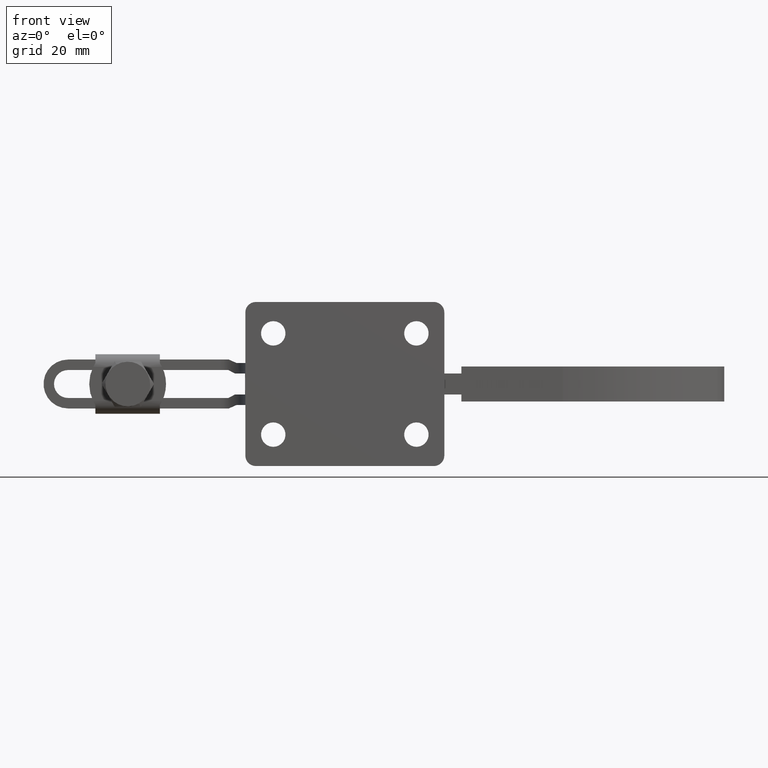
[diagram: clean part render]
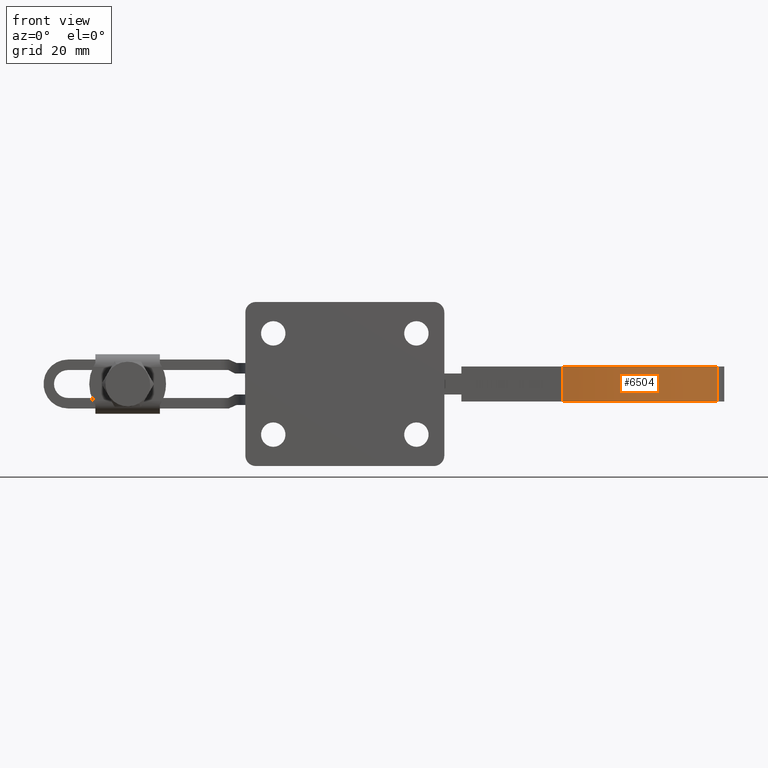
[diagram: same view with one face highlighted and labeled with its STEP entity id]
A machine part, front view. The second image highlights one B-rep face of the part: STEP entity #6504.
In plain terms, the highlighted cylindrical surface (partial cylindrical patch) has radius 61.8 mm, axis along (-0, 0, 1).
Its self-contained STEP definition (entity closure, byte-faithful):
#57 = DIRECTION ( 'NONE',  ( 0.9988003929835591600, -0.04896708053261669000, 0.0000000000000000000 ) ) ;
#60 = DIRECTION ( 'NONE',  ( 0.9988003929835591600, -0.04896708053261669000, 0.0000000000000000000 ) ) ;
#104 = CARTESIAN_POINT ( 'NONE',  ( 33.90404303719848400, 26.15306339394216900, -5.000000000000003600 ) ) ;
#105 = DIRECTION ( 'NONE',  ( -1.169334560665335600E-051, 1.141928281899741800E-051, 1.000000000000000000 ) ) ;
#447 = DIRECTION ( 'NONE',  ( 0.9988003929835591600, -0.04896708053261669000, 0.0000000000000000000 ) ) ;
#547 = CYLINDRICAL_SURFACE ( 'NONE', #8587, 61.79999999999990500 ) ;
#555 = EDGE_CURVE ( 'NONE', #3729, #4782, #784, .T. ) ;
#697 = DIRECTION ( 'NONE',  ( -1.169334560665335600E-051, 1.141928281899741800E-051, 1.000000000000000000 ) ) ;
#784 = CIRCLE ( 'NONE', #7786, 61.79999999999990500 ) ;
#858 = CARTESIAN_POINT ( 'NONE',  ( 36.93020861411418600, 87.87892768032600100, -5.000000000000003600 ) ) ;
#920 = CARTESIAN_POINT ( 'NONE',  ( 78.08982216727199000, 41.77983645116293600, -5.000000000000003600 ) ) ;
#1051 = VECTOR ( 'NONE', #697, 1000.000000000000000 ) ;
#1120 = AXIS2_PLACEMENT_3D ( 'NONE', #858, #105, #60 ) ;
#3105 = CARTESIAN_POINT ( 'NONE',  ( 33.90404303719848400, 26.15306339394216900, -5.000000000000003600 ) ) ;
#3294 = ORIENTED_EDGE ( 'NONE', *, *, #7239, .F. ) ;
#3546 = VECTOR ( 'NONE', #4403, 1000.000000000000000 ) ;
#3706 = VERTEX_POINT ( 'NONE', #920 ) ;
#3729 = VERTEX_POINT ( 'NONE', #5182 ) ;
#4403 = DIRECTION ( 'NONE',  ( -1.169334560665335600E-051, 1.141928281899741800E-051, 1.000000000000000000 ) ) ;
#4782 = VERTEX_POINT ( 'NONE', #8847 ) ;
#4966 = EDGE_CURVE ( 'NONE', #3706, #4782, #6673, .T. ) ;
#5154 = FACE_OUTER_BOUND ( 'NONE', #8372, .T. ) ;
#5182 = CARTESIAN_POINT ( 'NONE',  ( 33.90404303719848400, 26.15306339394216900, 4.999999999999996400 ) ) ;
#5326 = ORIENTED_EDGE ( 'NONE', *, *, #4966, .T. ) ;
#6079 = EDGE_CURVE ( 'NONE', #7185, #3706, #7769, .T. ) ;
#6504 = ADVANCED_FACE ( 'NONE', ( #5154 ), #547, .T. ) ;
#6673 = LINE ( 'NONE', #8163, #1051 ) ;
#6775 = CARTESIAN_POINT ( 'NONE',  ( 36.93020861411418600, 87.87892768032600100, -5.000000000000003600 ) ) ;
#7185 = VERTEX_POINT ( 'NONE', #3105 ) ;
#7239 = EDGE_CURVE ( 'NONE', #7185, #3729, #7616, .T. ) ;
#7616 = LINE ( 'NONE', #104, #3546 ) ;
#7769 = CIRCLE ( 'NONE', #1120, 61.79999999999990500 ) ;
#7786 = AXIS2_PLACEMENT_3D ( 'NONE', #7916, #9527, #447 ) ;
#7916 = CARTESIAN_POINT ( 'NONE',  ( 36.93020861411418600, 87.87892768032600100, 4.999999999999996400 ) ) ;
#8066 = ORIENTED_EDGE ( 'NONE', *, *, #555, .F. ) ;
#8163 = CARTESIAN_POINT ( 'NONE',  ( 78.08982216727199000, 41.77983645116293600, -5.000000000000003600 ) ) ;
#8188 = ORIENTED_EDGE ( 'NONE', *, *, #6079, .T. ) ;
#8372 = EDGE_LOOP ( 'NONE', ( #5326, #8066, #3294, #8188 ) ) ;
#8587 = AXIS2_PLACEMENT_3D ( 'NONE', #6775, #8772, #57 ) ;
#8772 = DIRECTION ( 'NONE',  ( -1.169334560665335600E-051, 1.141928281899741800E-051, 1.000000000000000000 ) ) ;
#8847 = CARTESIAN_POINT ( 'NONE',  ( 78.08982216727199000, 41.77983645116293600, 4.999999999999996400 ) ) ;
#9527 = DIRECTION ( 'NONE',  ( -1.169334560665335600E-051, 1.141928281899741800E-051, 1.000000000000000000 ) ) ;